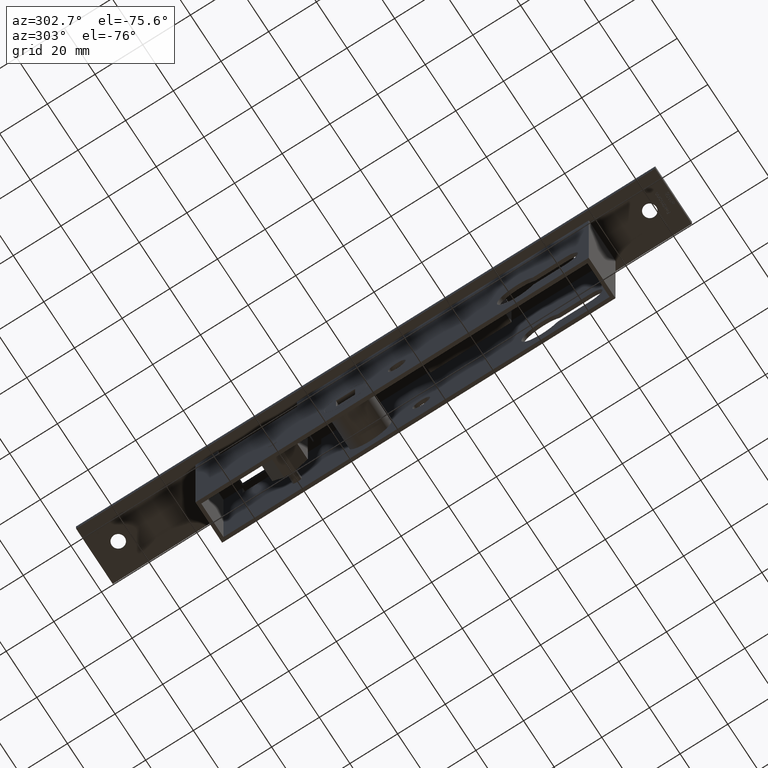
[diagram: clean part render]
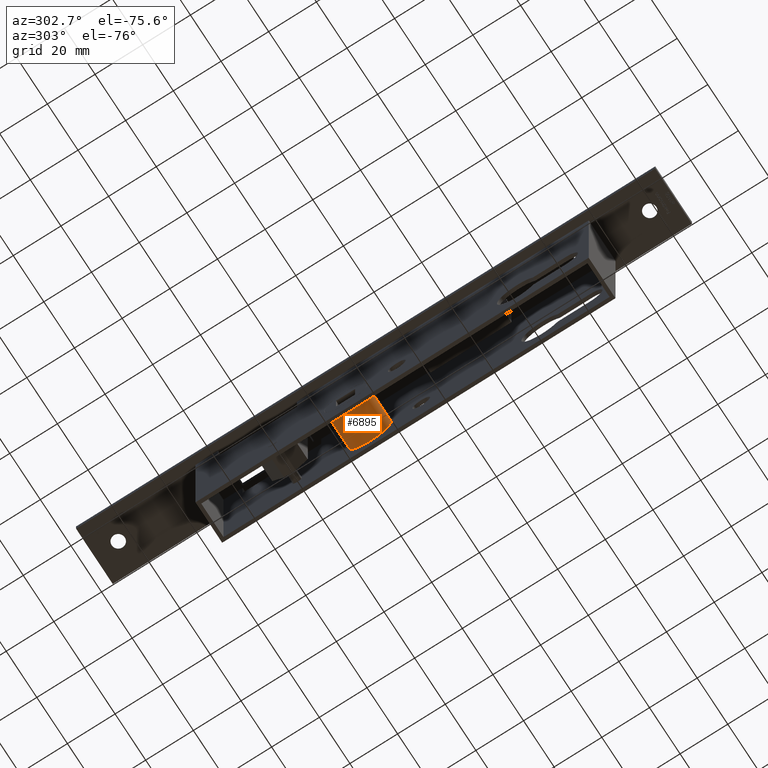
[diagram: same view with one face highlighted and labeled with its STEP entity id]
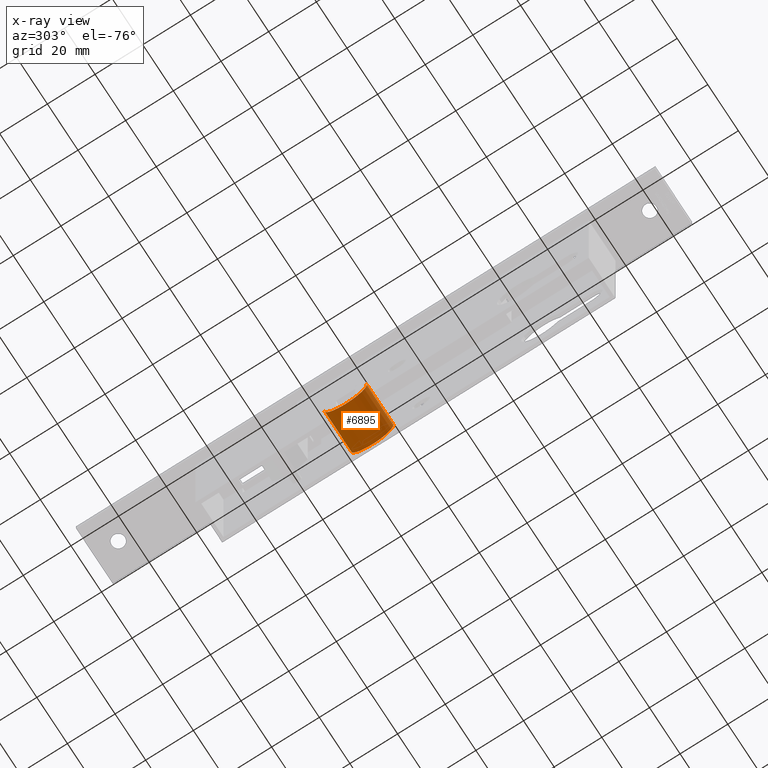
[diagram: x-ray of the same camera — body ghosted, the highlighted face saturated]
A machine part, auxiliary view. The second image highlights one B-rep face of the part: STEP entity #6895.
The next image is the same camera in x-ray: the body ghosted, the highlighted face saturated — about 0% of this face is hidden behind the body in this view.
In plain terms, the highlighted cylindrical surface (edge-blend (fillet) strip) has radius 8.9 mm, axis along (1, -0, -0).
Its self-contained STEP definition (entity closure, byte-faithful):
#301 = CYLINDRICAL_SURFACE ( 'NONE', #6424, 8.899999999999991500 ) ;
#781 = LINE ( 'NONE', #8062, #7246 ) ;
#1410 = AXIS2_PLACEMENT_3D ( 'NONE', #5744, #7801, #1462 ) ;
#1462 = DIRECTION ( 'NONE',  ( 1.949127501097537900E-016, 1.000000000000000000, 0.0000000000000000000 ) ) ;
#2338 = DIRECTION ( 'NONE',  ( 1.949127501097537900E-016, 1.000000000000000000, 0.0000000000000000000 ) ) ;
#2360 = EDGE_CURVE ( 'NONE', #8850, #7377, #781, .T. ) ;
#2389 = CARTESIAN_POINT ( 'NONE',  ( 8.750000000000017800, 132.0000000000000000, -37.00000000000000700 ) ) ;
#2834 = ORIENTED_EDGE ( 'NONE', *, *, #11079, .F. ) ;
#2855 = ORIENTED_EDGE ( 'NONE', *, *, #10617, .T. ) ;
#4426 = DIRECTION ( 'NONE',  ( 1.000000000000000000, -1.095614826932720200E-016, 0.0000000000000000000 ) ) ;
#5183 = VERTEX_POINT ( 'NONE', #11776 ) ;
#5744 = CARTESIAN_POINT ( 'NONE',  ( -8.749999999999987600, 132.0000000000000000, -37.00000000000000700 ) ) ;
#5761 = LINE ( 'NONE', #13243, #8667 ) ;
#5933 = FACE_OUTER_BOUND ( 'NONE', #11142, .T. ) ;
#6143 = VERTEX_POINT ( 'NONE', #7108 ) ;
#6424 = AXIS2_PLACEMENT_3D ( 'NONE', #9878, #8591, #9788 ) ;
#6500 = ORIENTED_EDGE ( 'NONE', *, *, #2360, .T. ) ;
#6750 = CIRCLE ( 'NONE', #10878, 8.899999999999991500 ) ;
#6895 = ADVANCED_FACE ( 'NONE', ( #5933 ), #301, .T. ) ;
#7108 = CARTESIAN_POINT ( 'NONE',  ( -8.749999999999989300, 123.1000000000000200, -37.00000000000000700 ) ) ;
#7116 = EDGE_CURVE ( 'NONE', #5183, #7377, #6750, .T. ) ;
#7246 = VECTOR ( 'NONE', #12700, 1000.000000000000000 ) ;
#7377 = VERTEX_POINT ( 'NONE', #8846 ) ;
#7801 = DIRECTION ( 'NONE',  ( 1.000000000000000000, -1.261617073437677800E-016, 0.0000000000000000000 ) ) ;
#8062 = CARTESIAN_POINT ( 'NONE',  ( -12.00000000000000900, 140.9000000000000100, -37.00000000000000700 ) ) ;
#8591 = DIRECTION ( 'NONE',  ( 1.000000000000000000, -1.095614826932720200E-016, -0.0000000000000000000 ) ) ;
#8667 = VECTOR ( 'NONE', #11106, 1000.000000000000000 ) ;
#8846 = CARTESIAN_POINT ( 'NONE',  ( 8.750000000000019500, 140.9000000000000100, -37.00000000000000700 ) ) ;
#8850 = VERTEX_POINT ( 'NONE', #9592 ) ;
#9592 = CARTESIAN_POINT ( 'NONE',  ( -8.749999999999985800, 140.9000000000000100, -37.00000000000000700 ) ) ;
#9788 = DIRECTION ( 'NONE',  ( 1.949127501097537900E-016, 1.000000000000000000, 0.0000000000000000000 ) ) ;
#9878 = CARTESIAN_POINT ( 'NONE',  ( -12.00000000000001100, 132.0000000000000000, -37.00000000000000700 ) ) ;
#9979 = ORIENTED_EDGE ( 'NONE', *, *, #7116, .F. ) ;
#10617 = EDGE_CURVE ( 'NONE', #6143, #8850, #13141, .T. ) ;
#10878 = AXIS2_PLACEMENT_3D ( 'NONE', #2389, #4426, #2338 ) ;
#11079 = EDGE_CURVE ( 'NONE', #6143, #5183, #5761, .T. ) ;
#11106 = DIRECTION ( 'NONE',  ( 1.000000000000000000, -1.095614826932720200E-016, -0.0000000000000000000 ) ) ;
#11142 = EDGE_LOOP ( 'NONE', ( #2834, #2855, #6500, #9979 ) ) ;
#11776 = CARTESIAN_POINT ( 'NONE',  ( 8.750000000000016000, 123.1000000000000200, -37.00000000000000700 ) ) ;
#12700 = DIRECTION ( 'NONE',  ( 1.000000000000000000, -1.095614826932720200E-016, -0.0000000000000000000 ) ) ;
#13141 = CIRCLE ( 'NONE', #1410, 8.899999999999991500 ) ;
#13243 = CARTESIAN_POINT ( 'NONE',  ( -12.00000000000001200, 123.1000000000000200, -37.00000000000000700 ) ) ;